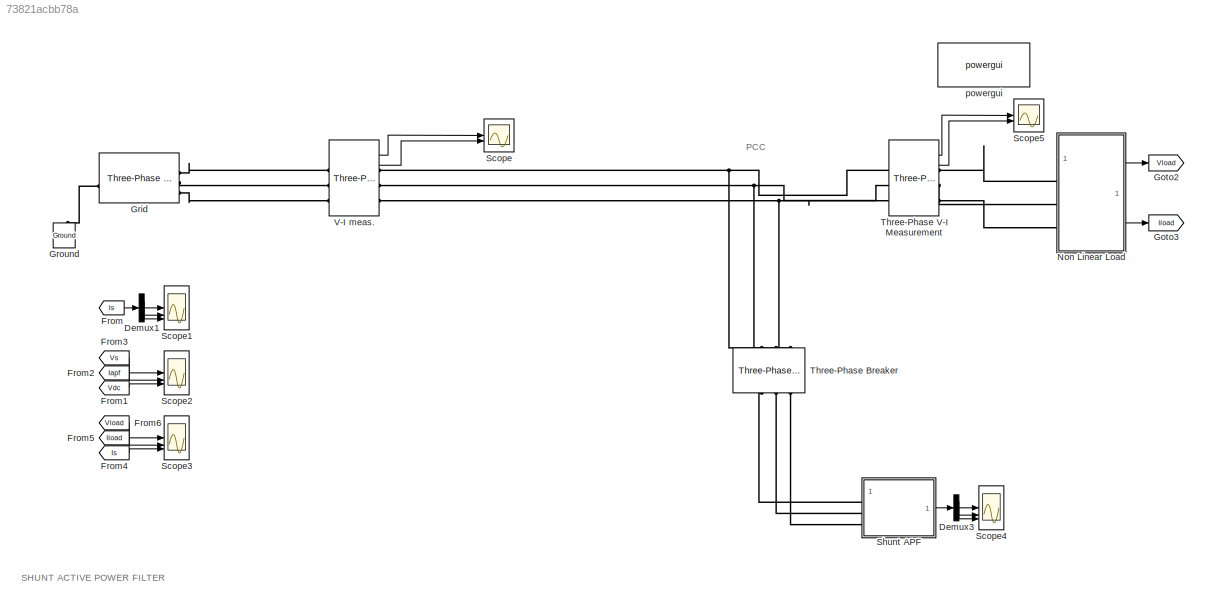
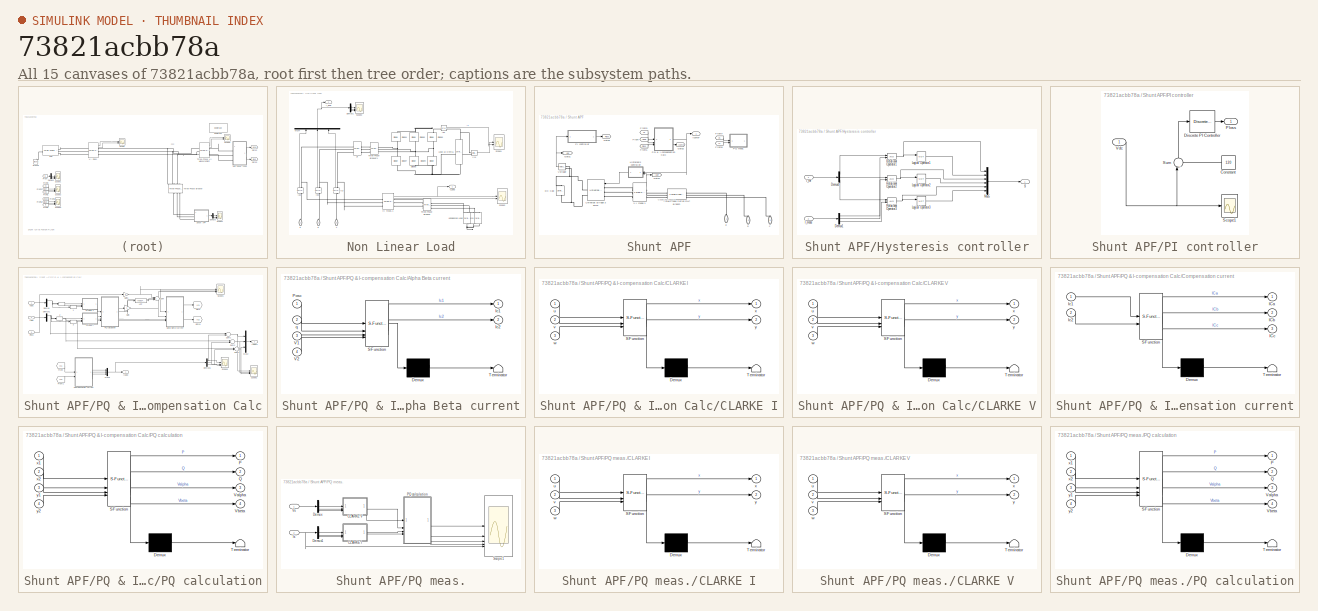
[diagram: thumbnail index - all 15 canvases of the model, root first then tree order]
MODEL mdl_73821acbb78a
KIND model
CONFIG AbsTol = auto
CONFIG EnableMultiTasking = on
CONFIG FixedStep = auto
CONFIG MaxStep = auto
CONFIG MinStep = auto
CONFIG RelTol = 1e-3
CONFIG SampleTimeConstraint = Unconstrained
CONFIG SolverName = ode45
CONFIG StartTime = 0.0
CONFIG StopTime = 0.2
BLOCK [Demux] Demux1
  Outputs = 3
BLOCK [Demux] Demux3
  Outputs = 3
BLOCK [From] From
  CloseFcn = tagdialog Close
  GotoTag = Is
BLOCK [From] From1
  CloseFcn = tagdialog Close
  GotoTag = Vdc
  TagVisibility = global
BLOCK [From] From2
  CloseFcn = tagdialog Close
  GotoTag = Iapf
  TagVisibility = global
BLOCK [From] From3
  CloseFcn = tagdialog Close
  GotoTag = Vs
BLOCK [From] From4
  CloseFcn = tagdialog Close
  GotoTag = Is
BLOCK [From] From5
  CloseFcn = tagdialog Close
  GotoTag = Iload
  TagVisibility = global
BLOCK [From] From6
  CloseFcn = tagdialog Close
  GotoTag = Vload
  TagVisibility = global
BLOCK [Goto] Goto2
  GotoTag = Vload
  TagVisibility = global
BLOCK [Goto] Goto3
  GotoTag = Iload
  TagVisibility = global
BLOCK [Reference] Grid  REF=spsThreePhaseProgrammableVoltageSourceLib/Three-Phase
Programmable
Voltage Source
  LibrarySourceBlock = sps_lib/Sources/Three-Phase\nProgrammable\nVoltage Source
  SourceBlock = spsThreePhaseProgrammableVoltageSourceLib/Three-Phase\nProgrammable\nVoltage Source
  SourceType = Three-Phase Programmable Voltage Source
BLOCK [Reference] Ground  REF=spsGroundLib/Ground
  LibrarySourceBlock = sps_lib/Utilities/Ground
  NameLocation = right
  SourceBlock = spsGroundLib/Ground
  SourceType = Ground
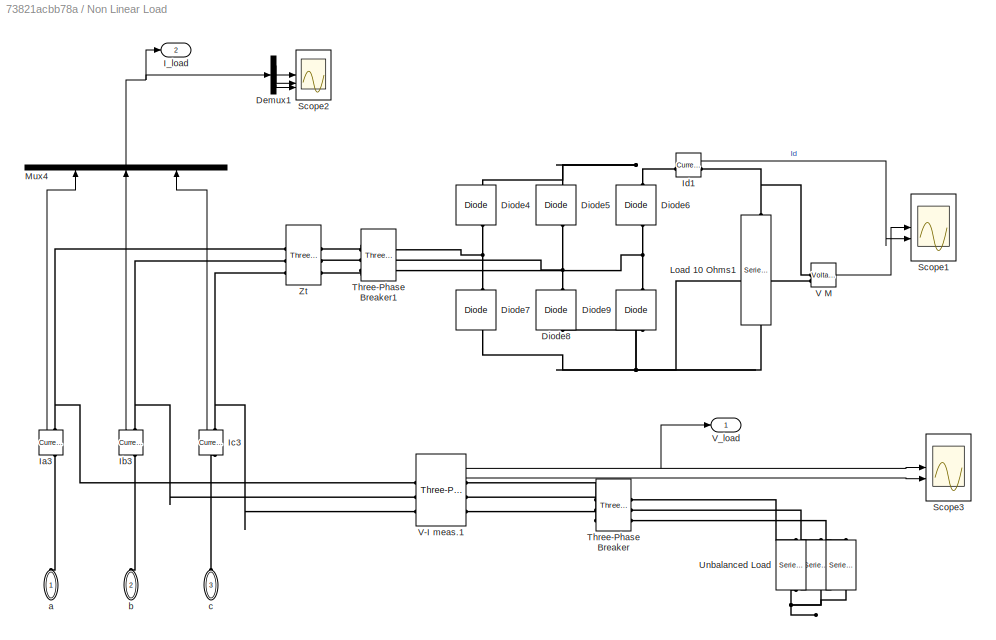
BLOCK [SubSystem] Non Linear Load
BLOCK [Reference] Non Linear Load/   REF=spsSeriesRLCBranchLib/Series RLC Branch
  AttributesFormatString = \n
  NameLocation = left
  SourceBlock = spsSeriesRLCBranchLib/Series RLC Branch
  SourceType = Series RLC Branch
BLOCK [Reference] Non Linear Load/     REF=spsSeriesRLCBranchLib/Series RLC Branch
  AttributesFormatString = \n
  NameLocation = left
  SourceBlock = spsSeriesRLCBranchLib/Series RLC Branch
  SourceType = Series RLC Branch
BLOCK [Demux] Non Linear Load/Demux1
  Outputs = 3
BLOCK [Reference] Non Linear Load/Diode4  REF=spsDiodeLib/Diode
  AttributesFormatString = \n
  LibrarySourceBlock = sps_lib/Power Electronics/Diode
  NameLocation = right
  SourceBlock = spsDiodeLib/Diode
  SourceType = Diode
BLOCK [Reference] Non Linear Load/Diode5  REF=spsDiodeLib/Diode
  AttributesFormatString = \n
  LibrarySourceBlock = sps_lib/Power Electronics/Diode
  NameLocation = right
  SourceBlock = spsDiodeLib/Diode
  SourceType = Diode
BLOCK [Reference] Non Linear Load/Diode6  REF=spsDiodeLib/Diode
  AttributesFormatString = \n
  LibrarySourceBlock = sps_lib/Power Electronics/Diode
  NameLocation = right
  SourceBlock = spsDiodeLib/Diode
  SourceType = Diode
BLOCK [Reference] Non Linear Load/Diode7  REF=spsDiodeLib/Diode
  AttributesFormatString = \n
  LibrarySourceBlock = sps_lib/Power Electronics/Diode
  NameLocation = right
  SourceBlock = spsDiodeLib/Diode
  SourceType = Diode
BLOCK [Reference] Non Linear Load/Diode8  REF=spsDiodeLib/Diode
  AttributesFormatString = \n
  LibrarySourceBlock = sps_lib/Power Electronics/Diode
  NameLocation = right
  SourceBlock = spsDiodeLib/Diode
  SourceType = Diode
BLOCK [Reference] Non Linear Load/Diode9  REF=spsDiodeLib/Diode
  AttributesFormatString = \n
  LibrarySourceBlock = sps_lib/Power Electronics/Diode
  NameLocation = right
  SourceBlock = spsDiodeLib/Diode
  SourceType = Diode
BLOCK [Outport] Non Linear Load/I_load
  Port = 2
BLOCK [Reference] Non Linear Load/Ia3  REF=spsCurrentMeasurementLib/Current Measurement
  NameLocation = right
  SourceBlock = spsCurrentMeasurementLib/Current Measurement
  SourceType = Current Measurement
BLOCK [Reference] Non Linear Load/Ib3  REF=spsCurrentMeasurementLib/Current Measurement
  NameLocation = right
  SourceBlock = spsCurrentMeasurementLib/Current Measurement
  SourceType = Current Measurement
BLOCK [Reference] Non Linear Load/Ic3  REF=spsCurrentMeasurementLib/Current Measurement
  NameLocation = right
  SourceBlock = spsCurrentMeasurementLib/Current Measurement
  SourceType = Current Measurement
BLOCK [Reference] Non Linear Load/Id1  REF=spsCurrentMeasurementLib/Current Measurement
  AttributesFormatString = \n
  SourceBlock = spsCurrentMeasurementLib/Current Measurement
  SourceType = Current Measurement
  Tag = PoWeRsYsTeMmEaSuReMeNt
BLOCK [Reference] Non Linear Load/Load 10 Ohms1  REF=spsSeriesRLCBranchLib/Series RLC Branch
  AttributesFormatString = \n
  NameLocation = left
  SourceBlock = spsSeriesRLCBranchLib/Series RLC Branch
  SourceType = Series RLC Branch
BLOCK [Mux] Non Linear Load/Mux4
  DisplayOption = bar
  Inputs = 3
  NameLocation = right
BLOCK [Scope] Non Linear Load/Scope1
  Floating = off
  NumInputPorts = 2
  ScopeSpecificationString = C++SS(StrPVP('Location','[6, 48, 1030, 727]'),StrPVP('Open','off'),StrPVP('ZoomMode','xonly'),MxPVP('AxesTitles',54,'struct(''axes1'',''%<SignalLabel>'',''axes2'',''%<SignalLabel>'')'),StrPVP('TimeRange','0.1'),StrPVP('YMin','-2.5~-0.05'),StrPVP('YMax','55~0.95'),StrPVP('DataFormat','Structure'),StrPVP('LimitDataPoints','off'),StrPVP('BlockParamSampleTime','0'),StrPVP('Decimation','1'),StrPVP('Blo...<+27ch>
BLOCK [Scope] Non Linear Load/Scope2
  Floating = off
  NumInputPorts = 3
  ScopeSpecificationString = C++SS(StrPVP('Location','[1, 49, 1281, 759]'),StrPVP('Open','off'),StrPVP('ZoomMode','xonly'),MxPVP('AxesTitles',54,'struct(''axes1'',''%<SignalLabel>'',''axes2'',''%<SignalLabel>'',''axes3'',''%<SignalLabel>'')'),StrPVP('TimeRange','0.1'),StrPVP('YMin','0~-56.5~-5'),StrPVP('YMax','60~-48~60'),StrPVP('SaveToWorkspace','on'),StrPVP('SaveName','psb3phPWM1_str8'),StrPVP('DataFormat','StructureWithTim...<+167ch>
BLOCK [Scope] Non Linear Load/Scope3
  Floating = off
  NumInputPorts = 2
  ScopeSpecificationString = C++SS(StrPVP('Location','[6, 48, 1030, 727]'),StrPVP('Open','off'),StrPVP('ZoomMode','xonly'),MxPVP('AxesTitles',54,'struct(''axes1'',''%<SignalLabel>'',''axes2'',''%<SignalLabel>'')'),StrPVP('TimeRange','0.1'),StrPVP('YMin','-22.5~-2.25e-005'),StrPVP('YMax','35~3.5e-005'),StrPVP('SaveName','ScopeData1'),StrPVP('DataFormat','Structure'),StrPVP('LimitDataPoints','off'),StrPVP('BlockParamSampleTime'...<+69ch>
BLOCK [Reference] Non Linear Load/Three-Phase Breaker  REF=spsThreePhaseBreakerLib/Three-Phase Breaker
  LibrarySourceBlock = sps_lib/Power Grid Elements/Three-Phase Breaker
  SourceBlock = spsThreePhaseBreakerLib/Three-Phase Breaker
  SourceType = Three-Phase Breaker
BLOCK [Reference] Non Linear Load/Three-Phase Breaker1  REF=spsThreePhaseBreakerLib/Three-Phase Breaker
  LibrarySourceBlock = sps_lib/Power Grid Elements/Three-Phase Breaker
  SourceBlock = spsThreePhaseBreakerLib/Three-Phase Breaker
  SourceType = Three-Phase Breaker
BLOCK [Reference] Non Linear Load/Unbalanced Load  REF=spsSeriesRLCBranchLib/Series RLC Branch
  AttributesFormatString = \n
  NameLocation = left
  SourceBlock = spsSeriesRLCBranchLib/Series RLC Branch
  SourceType = Series RLC Branch
BLOCK [Reference] Non Linear Load/V M  REF=spsVoltageMeasurementLib/Voltage Measurement
  SourceBlock = spsVoltageMeasurementLib/Voltage Measurement
  SourceType = Voltage Measurement
BLOCK [Reference] Non Linear Load/V-I meas.1  REF=spsThreePhaseVIMeasurementLib/Three-Phase
V-I Measurement
  SourceBlock = spsThreePhaseVIMeasurementLib/Three-Phase\nV-I Measurement
  SourceType = Three-Phase VI Measurement
BLOCK [Outport] Non Linear Load/V_load
BLOCK [Reference] Non Linear Load/Zt  REF=spsThreePhaseSeriesRLCBranchLib/Three-Phase
Series RLC Branch
  AttributesFormatString = \n
  LibrarySourceBlock = sps_lib/Passives/Three-Phase\nSeries RLC Branch
  SourceBlock = spsThreePhaseSeriesRLCBranchLib/Three-Phase\nSeries RLC Branch
  SourceType = Three-Phase Series RLC Branch
BLOCK [PMIOPort] Non Linear Load/a
  NameLocation = left
  Side = Left
BLOCK [PMIOPort] Non Linear Load/b
  NameLocation = left
  Port = 2
  Side = Left
BLOCK [PMIOPort] Non Linear Load/c
  NameLocation = left
  Port = 3
  Side = Left
BLOCK [Scope] Scope
  Floating = off
  NumInputPorts = 2
  ScopeSpecificationString = Simulink.scopes.TimeScopeBlockCfg('CurrentConfiguration', extmgr.ConfigurationSet(extmgr.Configuration('Core','General UI',true),extmgr.Configuration('Core','Source UI',true),extmgr.Configuration('Sources','WiredSimulink',true,'DataLoggingVariableName','ScopeData2'),extmgr.Configuration('Visuals','Time Domain',true,'SerializedDisplays',{struct('MinYLimReal','-446.01126','MaxYLimReal','446.01126','...<+2389ch>
BLOCK [Scope] Scope1
  Floating = off
  NumInputPorts = 3
  ScopeSpecificationString = C++SS(StrPVP('Location','[1, 49, 1281, 759]'),StrPVP('Open','off'),StrPVP('ZoomMode','xonly'),MxPVP('AxesTitles',54,'struct(''axes1'',''%<SignalLabel>'',''axes2'',''%<SignalLabel>'',''axes3'',''%<SignalLabel>'')'),StrPVP('TimeRange','0.1'),StrPVP('YMin','-70~-80~-70'),StrPVP('YMax','70~70~70'),StrPVP('SaveToWorkspace','on'),StrPVP('SaveName','Isource'),StrPVP('DataFormat','StructureWithTime'),StrP...<+159ch>
BLOCK [Scope] Scope2
  Floating = off
  NumInputPorts = 3
  ScopeSpecificationString = C++SS(StrPVP('Location','[6, 49, 1286, 727]'),StrPVP('Open','off'),StrPVP('ZoomMode','xonly'),MxPVP('AxesTitles',54,'struct(''axes1'',''%<SignalLabel>'',''axes2'',''%<SignalLabel>'',''axes3'',''%<SignalLabel>'')'),StrPVP('TimeRange','0.1'),StrPVP('YMin','-30~-0.2~101.25'),StrPVP('YMax','35~0.3~104.5'),StrPVP('SaveToWorkspace','on'),StrPVP('SaveName','Vs_Iapf_Vdc'),StrPVP('DataFormat','StructureWit...<+171ch>
BLOCK [Scope] Scope3
  Floating = off
  NumInputPorts = 3
  ScopeSpecificationString = C++SS(StrPVP('Location','[1, 49, 1367, 727]'),StrPVP('Open','off'),StrPVP('ZoomMode','xonly'),MxPVP('AxesTitles',54,'struct(''axes1'',''%<SignalLabel>'',''axes2'',''%<SignalLabel>'',''axes3'',''%<SignalLabel>'')'),StrPVP('TimeRange','0.1'),StrPVP('YMin','-35~-1~-1.75'),StrPVP('YMax','35~1~1.75'),StrPVP('SaveToWorkspace','on'),StrPVP('SaveName','Vs_Iapf_Vdc1'),StrPVP('DataFormat','StructureWithTime...<+166ch>
BLOCK [Scope] Scope4
  Floating = off
  NumInputPorts = 3
  ScopeSpecificationString = C++SS(StrPVP('Location','[255, 57, 1275, 736]'),StrPVP('Open','off'),StrPVP('ZoomMode','xonly'),MxPVP('AxesTitles',54,'struct(''axes1'',''%<SignalLabel>'',''axes2'',''%<SignalLabel>'',''axes3'',''%<SignalLabel>'')'),StrPVP('TimeRange','0.1'),StrPVP('YMin','-350~-500~-400'),StrPVP('YMax','400~500~400'),StrPVP('SaveToWorkspace','on'),StrPVP('SaveName','Icomp'),StrPVP('DataFormat','StructureWithTime'...<+165ch>
BLOCK [Scope] Scope5
  Floating = off
  NumInputPorts = 2
  ScopeSpecificationString = Simulink.scopes.TimeScopeBlockCfg('CurrentConfiguration', extmgr.ConfigurationSet(extmgr.Configuration('Core','General UI',true),extmgr.Configuration('Core','Source UI',true),extmgr.Configuration('Sources','WiredSimulink',true,'DataLoggingVariableName','ScopeData3'),extmgr.Configuration('Visuals','Time Domain',true,'SerializedDisplays',{struct('MinYLimReal','-387.83588','MaxYLimReal','387.83588','...<+2425ch>
BLOCK [SubSystem] Shunt APF
BLOCK [Reference] Shunt APF/DC Cap  REF=spsSeriesRLCBranchLib/Series RLC Branch
  NameLocation = left
  SourceBlock = spsSeriesRLCBranchLib/Series RLC Branch
  SourceType = Series RLC Branch
BLOCK [From] Shunt APF/From
  CloseFcn = tagdialog Close
  GotoTag = Iload
  TagVisibility = global
BLOCK [From] Shunt APF/From1
  CloseFcn = tagdialog Close
  GotoTag = Ploss
  TagVisibility = global
BLOCK [From] Shunt APF/From3
  CloseFcn = tagdialog Close
  GotoTag = Vs
BLOCK [From] Shunt APF/From7
  CloseFcn = tagdialog Close
  GotoTag = Vs
BLOCK [From] Shunt APF/From8
  CloseFcn = tagdialog Close
  GotoTag = Is
BLOCK [Goto] Shunt APF/Goto1
  GotoTag = Vdc
  TagVisibility = global
BLOCK [Goto] Shunt APF/Goto2
  GotoTag = Icomp
BLOCK [Goto] Shunt APF/Goto3
  GotoTag = Ploss
  TagVisibility = global
BLOCK [Goto] Shunt APF/Goto4
  GotoTag = Iapf
  TagVisibility = global
BLOCK [SubSystem] Shunt APF/Hysteresis controller
  NameLocation = top
BLOCK [Demux] Shunt APF/Hysteresis controller/Demux1
  NameLocation = top
  Outputs = 3
BLOCK [Demux] Shunt APF/Hysteresis controller/Demux9
  NameLocation = top
  Outputs = 3
BLOCK [Inport] Shunt APF/Hysteresis controller/I_meas
  Port = 2
BLOCK [Inport] Shunt APF/Hysteresis controller/I_ref
BLOCK [Logic] Shunt APF/Hysteresis controller/Logical Operator1
  AllPortsSameDT = off
  Operator = NOT
  OutDataTypeStr = boolean
BLOCK [Logic] Shunt APF/Hysteresis controller/Logical Operator2
  AllPortsSameDT = off
  Operator = NOT
  OutDataTypeStr = boolean
BLOCK [Logic] Shunt APF/Hysteresis controller/Logical Operator3
  AllPortsSameDT = off
  Operator = NOT
  OutDataTypeStr = boolean
BLOCK [Mux] Shunt APF/Hysteresis controller/Mux5
  DisplayOption = bar
  Inputs = 6
BLOCK [RelationalOperator] Shunt APF/Hysteresis controller/Relational Operator1
  InputSameDT = off
  OutDataTypeStr = boolean
BLOCK [RelationalOperator] Shunt APF/Hysteresis controller/Relational Operator2
  InputSameDT = off
  OutDataTypeStr = boolean
BLOCK [RelationalOperator] Shunt APF/Hysteresis controller/Relational Operator3
  InputSameDT = off
  OutDataTypeStr = boolean
BLOCK [Outport] Shunt APF/Hysteresis controller/g
BLOCK [Outport] Shunt APF/Icomp*
BLOCK [SubSystem] Shunt APF/PI controller
BLOCK [Constant] Shunt APF/PI controller/Constant
  NameLocation = top
  Value = 120
BLOCK [Reference] Shunt APF/PI controller/Discrete PI Controller  REF=powerlib_extras/Discrete 
Control Blocks/Discrete
PI Controller
  SourceBlock = powerlib_extras/Discrete \nControl Blocks/Discrete\nPI Controller
  SourceType = Discrete PI Controller
BLOCK [Outport] Shunt APF/PI controller/Ploss
BLOCK [Scope] Shunt APF/PI controller/Scope1
  Floating = off
  NumInputPorts = 1
  ScopeSpecificationString = C++SS(StrPVP('Location','[6, 48, 1026, 727]'),StrPVP('Open','off'),StrPVP('ZoomMode','yonly'),MxPVP('AxesTitles',54,'struct(''axes1'',''%<SignalLabel>'')'),StrPVP('TimeRange','0.1'),StrPVP('YMin','-1000'),StrPVP('YMax','14000'),StrPVP('SaveToWorkspace','on'),StrPVP('SaveName','psb3phPWM1_str1'),StrPVP('DataFormat','StructureWithTime'),StrPVP('LimitDataPoints','off'),StrPVP('MaxDataPoints','500000'...<+100ch>
BLOCK [Sum] Shunt APF/PI controller/Sum
  Inputs = |-+
  NameLocation = right
BLOCK [Inport] Shunt APF/PI controller/Vdc
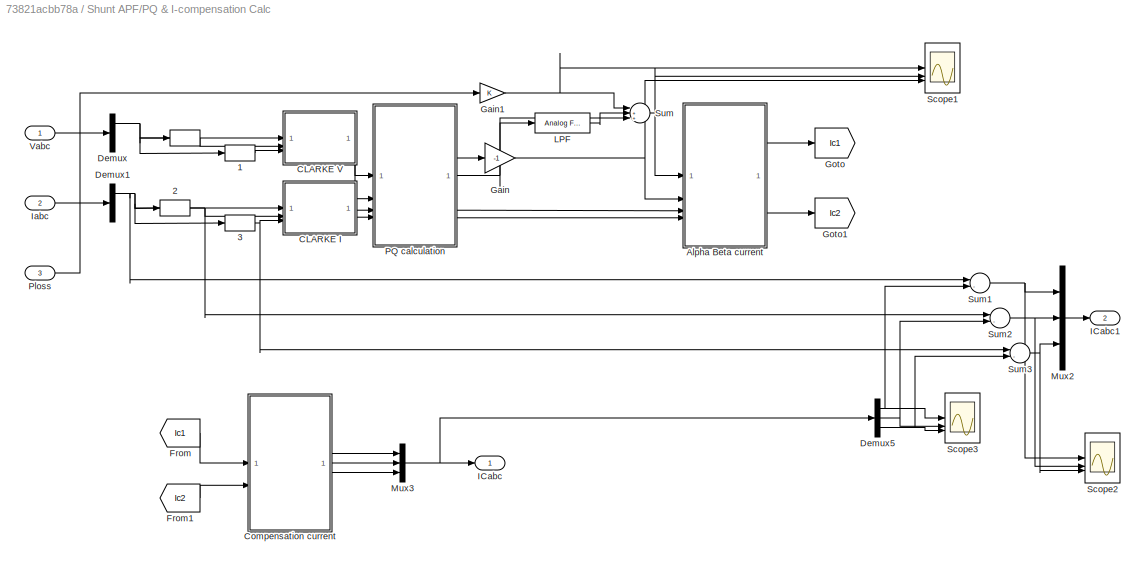
BLOCK [SubSystem] Shunt APF/PQ & I-compensation Calc
BLOCK [TransportDelay] Shunt APF/PQ & I-compensation Calc/ 
  DelayTime = 0.006666666
BLOCK [TransportDelay] Shunt APF/PQ & I-compensation Calc/ 1
  DelayTime = 0.013333333
BLOCK [TransportDelay] Shunt APF/PQ & I-compensation Calc/ 2
  DelayTime = 0.006666666
BLOCK [TransportDelay] Shunt APF/PQ & I-compensation Calc/ 3
  DelayTime = 0.013333333
BLOCK [SubSystem] Shunt APF/PQ & I-compensation Calc/Alpha Beta current
  ErrorFcn = Stateflow.Translate.translate
  PermitHierarchicalResolution = ExplicitOnly
  SFBlockType = MATLAB Function
  TreatAsAtomicUnit = on
BLOCK [Demux] Shunt APF/PQ & I-compensation Calc/Alpha Beta current/ Demux 
  Outputs = 1
BLOCK [S-Function] Shunt APF/PQ & I-compensation Calc/Alpha Beta current/ SFunction 
  EnableBusSupport = on
  FunctionName = sf_sfun
  PortCounts = [4 3]
  SFcnIsStateOwnerBlock = off
  SFunctionDeploymentMode = off
  Tag = Stateflow S-Function 5
BLOCK [Terminator] Shunt APF/PQ & I-compensation Calc/Alpha Beta current/ Terminator 
BLOCK [Outport] Shunt APF/PQ & I-compensation Calc/Alpha Beta current/Ic1
BLOCK [Outport] Shunt APF/PQ & I-compensation Calc/Alpha Beta current/Ic2
  Port = 2
BLOCK [Inport] Shunt APF/PQ & I-compensation Calc/Alpha Beta current/Posc
BLOCK [Inport] Shunt APF/PQ & I-compensation Calc/Alpha Beta current/V1
  Port = 3
BLOCK [Inport] Shunt APF/PQ & I-compensation Calc/Alpha Beta current/V2
  Port = 4
BLOCK [Inport] Shunt APF/PQ & I-compensation Calc/Alpha Beta current/q
  Port = 2
BLOCK [SubSystem] Shunt APF/PQ & I-compensation Calc/CLARKE I
  ErrorFcn = Stateflow.Translate.translate
  PermitHierarchicalResolution = ExplicitOnly
  SFBlockType = MATLAB Function
  TreatAsAtomicUnit = on
BLOCK [Demux] Shunt APF/PQ & I-compensation Calc/CLARKE I/ Demux 
  Outputs = 1
BLOCK [S-Function] Shunt APF/PQ & I-compensation Calc/CLARKE I/ SFunction 
  EnableBusSupport = on
  FunctionName = sf_sfun
  PortCounts = [3 3]
  SFcnIsStateOwnerBlock = off
  SFunctionDeploymentMode = off
  Tag = Stateflow S-Function 1
BLOCK [Terminator] Shunt APF/PQ & I-compensation Calc/CLARKE I/ Terminator 
BLOCK [Inport] Shunt APF/PQ & I-compensation Calc/CLARKE I/u
BLOCK [Inport] Shunt APF/PQ & I-compensation Calc/CLARKE I/v
  Port = 2
BLOCK [Inport] Shunt APF/PQ & I-compensation Calc/CLARKE I/w
  Port = 3
BLOCK [Outport] Shunt APF/PQ & I-compensation Calc/CLARKE I/x
BLOCK [Outport] Shunt APF/PQ & I-compensation Calc/CLARKE I/y
  Port = 2
BLOCK [SubSystem] Shunt APF/PQ & I-compensation Calc/CLARKE V
  ErrorFcn = Stateflow.Translate.translate
  PermitHierarchicalResolution = ExplicitOnly
  SFBlockType = MATLAB Function
  TreatAsAtomicUnit = on
BLOCK [Demux] Shunt APF/PQ & I-compensation Calc/CLARKE V/ Demux 
  Outputs = 1
BLOCK [S-Function] Shunt APF/PQ & I-compensation Calc/CLARKE V/ SFunction 
  EnableBusSupport = on
  FunctionName = sf_sfun
  PortCounts = [3 3]
  SFcnIsStateOwnerBlock = off
  SFunctionDeploymentMode = off
  Tag = Stateflow S-Function 2
BLOCK [Terminator] Shunt APF/PQ & I-compensation Calc/CLARKE V/ Terminator 
BLOCK [Inport] Shunt APF/PQ & I-compensation Calc/CLARKE V/u
BLOCK [Inport] Shunt APF/PQ & I-compensation Calc/CLARKE V/v
  Port = 2
BLOCK [Inport] Shunt APF/PQ & I-compensation Calc/CLARKE V/w
  Port = 3
BLOCK [Outport] Shunt APF/PQ & I-compensation Calc/CLARKE V/x
BLOCK [Outport] Shunt APF/PQ & I-compensation Calc/CLARKE V/y
  Port = 2
BLOCK [SubSystem] Shunt APF/PQ & I-compensation Calc/Compensation current
  ErrorFcn = Stateflow.Translate.translate
  PermitHierarchicalResolution = ExplicitOnly
  SFBlockType = MATLAB Function
  TreatAsAtomicUnit = on
BLOCK [Demux] Shunt APF/PQ & I-compensation Calc/Compensation current/ Demux 
  Outputs = 1
BLOCK [S-Function] Shunt APF/PQ & I-compensation Calc/Compensation current/ SFunction 
  EnableBusSupport = on
  FunctionName = sf_sfun
  PortCounts = [2 4]
  SFcnIsStateOwnerBlock = off
  SFunctionDeploymentMode = off
  Tag = Stateflow S-Function 4
BLOCK [Terminator] Shunt APF/PQ & I-compensation Calc/Compensation current/ Terminator 
BLOCK [Outport] Shunt APF/PQ & I-compensation Calc/Compensation current/ICa
BLOCK [Outport] Shunt APF/PQ & I-compensation Calc/Compensation current/ICb
  Port = 2
BLOCK [Outport] Shunt APF/PQ & I-compensation Calc/Compensation current/ICc
  Port = 3
BLOCK [Inport] Shunt APF/PQ & I-compensation Calc/Compensation current/Ic1
BLOCK [Inport] Shunt APF/PQ & I-compensation Calc/Compensation current/Ic2
  Port = 2
BLOCK [Demux] Shunt APF/PQ & I-compensation Calc/Demux
  Outputs = 3
BLOCK [Demux] Shunt APF/PQ & I-compensation Calc/Demux1
  Outputs = 3
BLOCK [Demux] Shunt APF/PQ & I-compensation Calc/Demux5
  Outputs = 3
BLOCK [From] Shunt APF/PQ & I-compensation Calc/From
  GotoTag = Ic1
BLOCK [From] Shunt APF/PQ & I-compensation Calc/From1
  GotoTag = Ic2
BLOCK [Gain] Shunt APF/PQ & I-compensation Calc/Gain
  Gain = -1
BLOCK [Gain] Shunt APF/PQ & I-compensation Calc/Gain1
BLOCK [Goto] Shunt APF/PQ & I-compensation Calc/Goto
  GotoTag = Ic1
BLOCK [Goto] Shunt APF/PQ & I-compensation Calc/Goto1
  GotoTag = Ic2
BLOCK [Outport] Shunt APF/PQ & I-compensation Calc/ICabc
BLOCK [Outport] Shunt APF/PQ & I-compensation Calc/ICabc1
  Port = 2
BLOCK [Inport] Shunt APF/PQ & I-compensation Calc/Iabc
  Port = 2
BLOCK [Reference] Shunt APF/PQ & I-compensation Calc/LPF  REF=dspfdesign/Analog
Filter Design
  SourceBlock = dspfdesign/Analog\nFilter Design
  SourceType = Analog Filter Design
BLOCK [Mux] Shunt APF/PQ & I-compensation Calc/Mux2
  DisplayOption = bar
  Inputs = 3
BLOCK [Mux] Shunt APF/PQ & I-compensation Calc/Mux3
  DisplayOption = bar
  Inputs = 3
BLOCK [SubSystem] Shunt APF/PQ & I-compensation Calc/PQ calculation
  ErrorFcn = Stateflow.Translate.translate
  PermitHierarchicalResolution = ExplicitOnly
  SFBlockType = MATLAB Function
  TreatAsAtomicUnit = on
BLOCK [Demux] Shunt APF/PQ & I-compensation Calc/PQ calculation/ Demux 
  Outputs = 1
BLOCK [S-Function] Shunt APF/PQ & I-compensation Calc/PQ calculation/ SFunction 
  EnableBusSupport = on
  FunctionName = sf_sfun
  PortCounts = [4 5]
  SFcnIsStateOwnerBlock = off
  SFunctionDeploymentMode = off
  Tag = Stateflow S-Function 3
BLOCK [Terminator] Shunt APF/PQ & I-compensation Calc/PQ calculation/ Terminator 
BLOCK [Outport] Shunt APF/PQ & I-compensation Calc/PQ calculation/P
BLOCK [Outport] Shunt APF/PQ & I-compensation Calc/PQ calculation/Q
  Port = 2
BLOCK [Outport] Shunt APF/PQ & I-compensation Calc/PQ calculation/Valpha
  Port = 3
BLOCK [Outport] Shunt APF/PQ & I-compensation Calc/PQ calculation/Vbeta
  Port = 4
BLOCK [Inport] Shunt APF/PQ & I-compensation Calc/PQ calculation/x1
BLOCK [Inport] Shunt APF/PQ & I-compensation Calc/PQ calculation/x2
  Port = 2
BLOCK [Inport] Shunt APF/PQ & I-compensation Calc/PQ calculation/y1
  Port = 3
BLOCK [Inport] Shunt APF/PQ & I-compensation Calc/PQ calculation/y2
  Port = 4
BLOCK [Inport] Shunt APF/PQ & I-compensation Calc/Ploss
  Port = 3
BLOCK [Scope] Shunt APF/PQ & I-compensation Calc/Scope1
  Floating = off
  NumInputPorts = 3
  ScopeSpecificationString = C++SS(StrPVP('Location','[255, 57, 1275, 736]'),StrPVP('Open','off'),StrPVP('ZoomMode','xonly'),MxPVP('AxesTitles',54,'struct(''axes1'',''%<SignalLabel>'',''axes2'',''%<SignalLabel>'',''axes3'',''%<SignalLabel>'')'),StrPVP('TimeRange','0.1'),StrPVP('YMin','3.575~4.5~-22'),StrPVP('YMax','3.875~9.5~-17'),StrPVP('SaveToWorkspace','on'),StrPVP('SaveName','psb3phPWM1_str9'),StrPVP('DataFormat','Structu...<+176ch>
BLOCK [Scope] Shunt APF/PQ & I-compensation Calc/Scope2
  Floating = off
  NumInputPorts = 3
  ScopeSpecificationString = C++SS(StrPVP('Location','[255, 57, 1275, 736]'),StrPVP('Open','off'),StrPVP('ZoomMode','xonly'),MxPVP('AxesTitles',54,'struct(''axes1'',''%<SignalLabel>'',''axes2'',''%<SignalLabel>'',''axes3'',''%<SignalLabel>'')'),StrPVP('TimeRange','0.1'),StrPVP('YMin','0.9825~-0.7725~-0.265'),StrPVP('YMax','1.0025~-0.735~-0.21'),StrPVP('SaveToWorkspace','on'),StrPVP('SaveName','psb3phPWM1_str2'),StrPVP('DataFo...<+190ch>
BLOCK [Scope] Shunt APF/PQ & I-compensation Calc/Scope3
  Floating = off
  NumInputPorts = 3
  ScopeSpecificationString = C++SS(StrPVP('Location','[255, 57, 1275, 736]'),StrPVP('Open','off'),StrPVP('ZoomMode','xonly'),MxPVP('AxesTitles',54,'struct(''axes1'',''%<SignalLabel>'',''axes2'',''%<SignalLabel>'',''axes3'',''%<SignalLabel>'')'),StrPVP('TimeRange','0.1'),StrPVP('YMin','-0.0625~-0.01~0.0325'),StrPVP('YMax','-0.04~0.01~0.07'),StrPVP('SaveToWorkspace','on'),StrPVP('SaveName','psb3phPWM1_str7'),StrPVP('DataFormat'...<+185ch>
BLOCK [Sum] Shunt APF/PQ & I-compensation Calc/Sum
  Inputs = |++-
BLOCK [Sum] Shunt APF/PQ & I-compensation Calc/Sum1
  Inputs = |-+
BLOCK [Sum] Shunt APF/PQ & I-compensation Calc/Sum2
  Inputs = |-+
BLOCK [Sum] Shunt APF/PQ & I-compensation Calc/Sum3
  Inputs = |-+
BLOCK [Inport] Shunt APF/PQ & I-compensation Calc/Vabc
BLOCK [SubSystem] Shunt APF/PQ meas.
BLOCK [SubSystem] Shunt APF/PQ meas./CLARKE I
  ErrorFcn = Stateflow.Translate.translate
  PermitHierarchicalResolution = ExplicitOnly
  SFBlockType = MATLAB Function
  TreatAsAtomicUnit = on
BLOCK [Demux] Shunt APF/PQ meas./CLARKE I/ Demux 
  Outputs = 1
BLOCK [S-Function] Shunt APF/PQ meas./CLARKE I/ SFunction 
  EnableBusSupport = on
  FunctionName = sf_sfun
  PortCounts = [3 3]
  SFcnIsStateOwnerBlock = off
  SFunctionDeploymentMode = off
  Tag = Stateflow S-Function 6
BLOCK [Terminator] Shunt APF/PQ meas./CLARKE I/ Terminator 
BLOCK [Inport] Shunt APF/PQ meas./CLARKE I/u
BLOCK [Inport] Shunt APF/PQ meas./CLARKE I/v
  Port = 2
BLOCK [Inport] Shunt APF/PQ meas./CLARKE I/w
  Port = 3
BLOCK [Outport] Shunt APF/PQ meas./CLARKE I/x
BLOCK [Outport] Shunt APF/PQ meas./CLARKE I/y
  Port = 2
BLOCK [SubSystem] Shunt APF/PQ meas./CLARKE V
  ErrorFcn = Stateflow.Translate.translate
  PermitHierarchicalResolution = ExplicitOnly
  SFBlockType = MATLAB Function
  TreatAsAtomicUnit = on
BLOCK [Demux] Shunt APF/PQ meas./CLARKE V/ Demux 
  Outputs = 1
BLOCK [S-Function] Shunt APF/PQ meas./CLARKE V/ SFunction 
  EnableBusSupport = on
  FunctionName = sf_sfun
  PortCounts = [3 3]
  SFcnIsStateOwnerBlock = off
  SFunctionDeploymentMode = off
  Tag = Stateflow S-Function 7
BLOCK [Terminator] Shunt APF/PQ meas./CLARKE V/ Terminator 
BLOCK [Inport] Shunt APF/PQ meas./CLARKE V/u
BLOCK [Inport] Shunt APF/PQ meas./CLARKE V/v
  Port = 2
BLOCK [Inport] Shunt APF/PQ meas./CLARKE V/w
  Port = 3
BLOCK [Outport] Shunt APF/PQ meas./CLARKE V/x
BLOCK [Outport] Shunt APF/PQ meas./CLARKE V/y
  Port = 2
BLOCK [Demux] Shunt APF/PQ meas./Demux
  Outputs = 3
BLOCK [Demux] Shunt APF/PQ meas./Demux1
  Outputs = 3
BLOCK [Inport] Shunt APF/PQ meas./Is
  Port = 2
BLOCK [SubSystem] Shunt APF/PQ meas./PQ calculation
  ErrorFcn = Stateflow.Translate.translate
  PermitHierarchicalResolution = ExplicitOnly
  SFBlockType = MATLAB Function
  TreatAsAtomicUnit = on
BLOCK [Demux] Shunt APF/PQ meas./PQ calculation/ Demux 
  Outputs = 1
BLOCK [S-Function] Shunt APF/PQ meas./PQ calculation/ SFunction 
  EnableBusSupport = on
  FunctionName = sf_sfun
  PortCounts = [4 5]
  SFcnIsStateOwnerBlock = off
  SFunctionDeploymentMode = off
  Tag = Stateflow S-Function 8
BLOCK [Terminator] Shunt APF/PQ meas./PQ calculation/ Terminator 
BLOCK [Outport] Shunt APF/PQ meas./PQ calculation/P
BLOCK [Outport] Shunt APF/PQ meas./PQ calculation/Q
  Port = 2
BLOCK [Outport] Shunt APF/PQ meas./PQ calculation/Valpha
  Port = 3
BLOCK [Outport] Shunt APF/PQ meas./PQ calculation/Vbeta
  Port = 4
BLOCK [Inport] Shunt APF/PQ meas./PQ calculation/x1
BLOCK [Inport] Shunt APF/PQ meas./PQ calculation/x2
  Port = 2
BLOCK [Inport] Shunt APF/PQ meas./PQ calculation/y1
  Port = 3
BLOCK [Inport] Shunt APF/PQ meas./PQ calculation/y2
  Port = 4
BLOCK [Scope] Shunt APF/PQ meas./Scope1
  Floating = off
  NumInputPorts = 5
  ScopeSpecificationString = C++SS(StrPVP('Location','[255, 57, 1275, 736]'),StrPVP('Open','off'),StrPVP('ZoomMode','xonly'),MxPVP('AxesTitles',54,'struct(''axes1'',''%<SignalLabel>'',''axes2'',''%<SignalLabel>'',''axes3'',''%<SignalLabel>'',''axes4'',''%<SignalLabel>'',''axes5'',''%<SignalLabel>'')'),StrPVP('TimeRange','0.1'),StrPVP('YMin','49.75~-1~-39.955~-2.7~-1.25'),StrPVP('YMax','51.5~1~-39.91~-1.8~0.75'),StrPVP('SaveTo...<+257ch>
BLOCK [Inport] Shunt APF/PQ meas./Vs
BLOCK [Reference] Shunt APF/Three-Phase Series RLC Branch  REF=spsThreePhaseSeriesRLCBranchLib/Three-Phase
Series RLC Branch
  AttributesFormatString = \n
  LibrarySourceBlock = sps_lib/Passives/Three-Phase\nSeries RLC Branch
  SourceBlock = spsThreePhaseSeriesRLCBranchLib/Three-Phase\nSeries RLC Branch
  SourceType = Three-Phase Series RLC Branch
BLOCK [Reference] Shunt APF/Universal Bridge 3 arms  REF=spsUniversalBridgeLib/Universal Bridge
  AttributesFormatString = \n
  LibrarySourceBlock = sps_lib/Power Electronics/Universal Bridge
  SourceBlock = spsUniversalBridgeLib/Universal Bridge
  SourceType = Universal Bridge
BLOCK [Reference] Shunt APF/V-I meas.1  REF=spsThreePhaseVIMeasurementLib/Three-Phase
V-I Measurement
  SourceBlock = spsThreePhaseVIMeasurementLib/Three-Phase\nV-I Measurement
  SourceType = Three-Phase VI Measurement
BLOCK [Reference] Shunt APF/Voltage  REF=spsVoltageMeasurementLib/Voltage Measurement
  NameLocation = top
  SourceBlock = spsVoltageMeasurementLib/Voltage Measurement
  SourceType = Voltage Measurement
BLOCK [PMIOPort] Shunt APF/a
  NameLocation = left
  Side = Left
BLOCK [PMIOPort] Shunt APF/b
  NameLocation = left
  Port = 2
  Side = Left
BLOCK [PMIOPort] Shunt APF/c
  NameLocation = left
  Port = 3
  Side = Left
BLOCK [Reference] Three-Phase Breaker  REF=spsThreePhaseBreakerLib/Three-Phase Breaker
  LibrarySourceBlock = sps_lib/Power Grid Elements/Three-Phase Breaker
  NameLocation = left
  SourceBlock = spsThreePhaseBreakerLib/Three-Phase Breaker
  SourceType = Three-Phase Breaker
BLOCK [Reference] Three-Phase V-I Measurement  REF=spsThreePhaseVIMeasurementLib/Three-Phase
V-I Measurement
  LibrarySourceBlock = sps_lib/Sensors and Measurements/Three-Phase\nV-I Measurement
  SourceBlock = spsThreePhaseVIMeasurementLib/Three-Phase\nV-I Measurement
  SourceType = Three-Phase VI Measurement
BLOCK [Reference] V-I meas.  REF=spsThreePhaseVIMeasurementLib/Three-Phase
V-I Measurement
  SourceBlock = spsThreePhaseVIMeasurementLib/Three-Phase\nV-I Measurement
  SourceType = Three-Phase VI Measurement
BLOCK [Reference] powergui  REF=spspowerguiLib/powergui
  Priority = 1
  SourceBlock = spspowerguiLib/powergui
  SourceType = PSB option menu block
ANNOTATION (root): PCC
ANNOTATION (root): SHUNT ACTIVE POWER FILTER
ANNOTATION Shunt APF: Coupling Inductor
LINE Demux1:1 -> Scope1:1
LINE Demux1:2 -> Scope1:2
LINE Demux1:3 -> Scope1:3
LINE Demux3:1 -> Scope4:1
LINE Demux3:2 -> Scope4:2
LINE Demux3:3 -> Scope4:3
LINE From1:1 -> Scope2:3
LINE From2:1 -> Scope2:2
LINE From3:1 -> Scope2:1
LINE From4:1 -> Scope3:3
LINE From5:1 -> Scope3:2
LINE From6:1 -> Scope3:1
LINE From:1 -> Demux1:1
LINE Non Linear Load/Demux1:1 -> Non Linear Load/Scope2:1
LINE Non Linear Load/Demux1:2 -> Non Linear Load/Scope2:2
LINE Non Linear Load/Demux1:3 -> Non Linear Load/Scope2:3
LINE Non Linear Load/Ia3:1 -> Non Linear Load/Mux4:1
LINE Non Linear Load/Ib3:1 -> Non Linear Load/Mux4:2
LINE Non Linear Load/Ic3:1 -> Non Linear Load/Mux4:3
LINE Non Linear Load/Id1:1 -> Non Linear Load/Scope1:2
NET Non Linear Load/Mux4:1 -> Non Linear Load/Demux1:1, Non Linear Load/I_load:1
LINE Non Linear Load/V M:1 -> Non Linear Load/Scope1:1
NET Non Linear Load/V-I meas.1:1 -> Non Linear Load/Scope3:1, Non Linear Load/V_load:1
LINE Non Linear Load/V-I meas.1:2 -> Non Linear Load/Scope3:2
LINE Non Linear Load:1 -> Goto2:1
LINE Non Linear Load:2 -> Goto3:1
LINE Shunt APF/From1:1 -> Shunt APF/PQ & I-compensation Calc:3
LINE Shunt APF/From3:1 -> Shunt APF/PQ & I-compensation Calc:1
LINE Shunt APF/From7:1 -> Shunt APF/PQ meas.:1
LINE Shunt APF/From8:1 -> Shunt APF/PQ meas.:2
LINE Shunt APF/From:1 -> Shunt APF/PQ & I-compensation Calc:2
LINE Shunt APF/Hysteresis controller/Demux1:1 -> Shunt APF/Hysteresis controller/Relational Operator1:2
LINE Shunt APF/Hysteresis controller/Demux1:2 -> Shunt APF/Hysteresis controller/Relational Operator2:2
LINE Shunt APF/Hysteresis controller/Demux1:3 -> Shunt APF/Hysteresis controller/Relational Operator3:2
LINE Shunt APF/Hysteresis controller/Demux9:1 -> Shunt APF/Hysteresis controller/Relational Operator1:1
LINE Shunt APF/Hysteresis controller/Demux9:2 -> Shunt APF/Hysteresis controller/Relational Operator2:1
LINE Shunt APF/Hysteresis controller/Demux9:3 -> Shunt APF/Hysteresis controller/Relational Operator3:1
LINE Shunt APF/Hysteresis controller/I_meas:1 -> Shunt APF/Hysteresis controller/Demux1:1
LINE Shunt APF/Hysteresis controller/I_ref:1 -> Shunt APF/Hysteresis controller/Demux9:1
LINE Shunt APF/Hysteresis controller/Logical Operator1:1 -> Shunt APF/Hysteresis controller/Mux5:2
LINE Shunt APF/Hysteresis controller/Logical Operator2:1 -> Shunt APF/Hysteresis controller/Mux5:4
LINE Shunt APF/Hysteresis controller/Logical Operator3:1 -> Shunt APF/Hysteresis controller/Mux5:6
LINE Shunt APF/Hysteresis controller/Mux5:1 -> Shunt APF/Hysteresis controller/g:1
NET Shunt APF/Hysteresis controller/Relational Operator1:1 -> Shunt APF/Hysteresis controller/Logical Operator1:1, Shunt APF/Hysteresis controller/Mux5:1
NET Shunt APF/Hysteresis controller/Relational Operator2:1 -> Shunt APF/Hysteresis controller/Logical Operator2:1, Shunt APF/Hysteresis controller/Mux5:3
NET Shunt APF/Hysteresis controller/Relational Operator3:1 -> Shunt APF/Hysteresis controller/Logical Operator3:1, Shunt APF/Hysteresis controller/Mux5:5
LINE Shunt APF/Hysteresis controller:1 -> Shunt APF/Universal Bridge 3 arms:1
LINE Shunt APF/PI controller/Constant:1 -> Shunt APF/PI controller/Sum:2
LINE Shunt APF/PI controller/Discrete PI Controller:1 -> Shunt APF/PI controller/Ploss:1
LINE Shunt APF/PI controller/Sum:1 -> Shunt APF/PI controller/Discrete PI Controller:1
NET Shunt APF/PI controller/Vdc:1 -> Shunt APF/PI controller/Scope1:1, Shunt APF/PI controller/Sum:1
LINE Shunt APF/PI controller:1 -> Shunt APF/Goto3:1
LINE Shunt APF/PQ & I-compensation Calc/ 1:1 -> Shunt APF/PQ & I-compensation Calc/CLARKE V:3
NET Shunt APF/PQ & I-compensation Calc/ 2:1 -> Shunt APF/PQ & I-compensation Calc/CLARKE I:2, Shunt APF/PQ & I-compensation Calc/Sum2:1
NET Shunt APF/PQ & I-compensation Calc/ 3:1 -> Shunt APF/PQ & I-compensation Calc/CLARKE I:3, Shunt APF/PQ & I-compensation Calc/Sum3:1
LINE Shunt APF/PQ & I-compensation Calc/ :1 -> Shunt APF/PQ & I-compensation Calc/CLARKE V:2
LINE Shunt APF/PQ & I-compensation Calc/Alpha Beta current:1 -> Shunt APF/PQ & I-compensation Calc/Goto:1
LINE Shunt APF/PQ & I-compensation Calc/Alpha Beta current:2 -> Shunt APF/PQ & I-compensation Calc/Goto1:1
LINE Shunt APF/PQ & I-compensation Calc/CLARKE I:1 -> Shunt APF/PQ & I-compensation Calc/PQ calculation:3
LINE Shunt APF/PQ & I-compensation Calc/CLARKE I:2 -> Shunt APF/PQ & I-compensation Calc/PQ calculation:4
LINE Shunt APF/PQ & I-compensation Calc/CLARKE V:1 -> Shunt APF/PQ & I-compensation Calc/PQ calculation:1
LINE Shunt APF/PQ & I-compensation Calc/CLARKE V:2 -> Shunt APF/PQ & I-compensation Calc/PQ calculation:2
LINE Shunt APF/PQ & I-compensation Calc/Compensation current:1 -> Shunt APF/PQ & I-compensation Calc/Mux3:1
LINE Shunt APF/PQ & I-compensation Calc/Compensation current:2 -> Shunt APF/PQ & I-compensation Calc/Mux3:2
LINE Shunt APF/PQ & I-compensation Calc/Compensation current:3 -> Shunt APF/PQ & I-compensation Calc/Mux3:3
NET Shunt APF/PQ & I-compensation Calc/Demux1:1 -> Shunt APF/PQ & I-compensation Calc/ 2:1, Shunt APF/PQ & I-compensation Calc/ 3:1, Shunt APF/PQ & I-compensation Calc/CLARKE I:1, Shunt APF/PQ & I-compensation Calc/Sum1:1
NET Shunt APF/PQ & I-compensation Calc/Demux5:1 -> Shunt APF/PQ & I-compensation Calc/Scope3:1, Shunt APF/PQ & I-compensation Calc/Sum1:2
NET Shunt APF/PQ & I-compensation Calc/Demux5:2 -> Shunt APF/PQ & I-compensation Calc/Scope3:2, Shunt APF/PQ & I-compensation Calc/Sum2:2
NET Shunt APF/PQ & I-compensation Calc/Demux5:3 -> Shunt APF/PQ & I-compensation Calc/Scope3:3, Shunt APF/PQ & I-compensation Calc/Sum3:2
NET Shunt APF/PQ & I-compensation Calc/Demux:1 -> Shunt APF/PQ & I-compensation Calc/ 1:1, Shunt APF/PQ & I-compensation Calc/ :1, Shunt APF/PQ & I-compensation Calc/CLARKE V:1
LINE Shunt APF/PQ & I-compensation Calc/From1:1 -> Shunt APF/PQ & I-compensation Calc/Compensation current:2
LINE Shunt APF/PQ & I-compensation Calc/From:1 -> Shunt APF/PQ & I-compensation Calc/Compensation current:1
NET Shunt APF/PQ & I-compensation Calc/Gain1:1 -> Shunt APF/PQ & I-compensation Calc/Scope1:1, Shunt APF/PQ & I-compensation Calc/Sum:1
NET Shunt APF/PQ & I-compensation Calc/Gain:1 -> Shunt APF/PQ & I-compensation Calc/Alpha Beta current:2, Shunt APF/PQ & I-compensation Calc/Scope1:3
LINE Shunt APF/PQ & I-compensation Calc/Iabc:1 -> Shunt APF/PQ & I-compensation Calc/Demux1:1
LINE Shunt APF/PQ & I-compensation Calc/LPF:1 -> Shunt APF/PQ & I-compensation Calc/Sum:2
LINE Shunt APF/PQ & I-compensation Calc/Mux2:1 -> Shunt APF/PQ & I-compensation Calc/ICabc1:1
NET Shunt APF/PQ & I-compensation Calc/Mux3:1 -> Shunt APF/PQ & I-compensation Calc/Demux5:1, Shunt APF/PQ & I-compensation Calc/ICabc:1
NET Shunt APF/PQ & I-compensation Calc/PQ calculation:1 -> Shunt APF/PQ & I-compensation Calc/LPF:1, Shunt APF/PQ & I-compensation Calc/Sum:3
LINE Shunt APF/PQ & I-compensation Calc/PQ calculation:2 -> Shunt APF/PQ & I-compensation Calc/Gain:1
LINE Shunt APF/PQ & I-compensation Calc/PQ calculation:3 -> Shunt APF/PQ & I-compensation Calc/Alpha Beta current:3
LINE Shunt APF/PQ & I-compensation Calc/PQ calculation:4 -> Shunt APF/PQ & I-compensation Calc/Alpha Beta current:4
LINE Shunt APF/PQ & I-compensation Calc/Ploss:1 -> Shunt APF/PQ & I-compensation Calc/Gain1:1
NET Shunt APF/PQ & I-compensation Calc/Sum1:1 -> Shunt APF/PQ & I-compensation Calc/Mux2:1, Shunt APF/PQ & I-compensation Calc/Scope2:1
NET Shunt APF/PQ & I-compensation Calc/Sum2:1 -> Shunt APF/PQ & I-compensation Calc/Mux2:2, Shunt APF/PQ & I-compensation Calc/Scope2:2
NET Shunt APF/PQ & I-compensation Calc/Sum3:1 -> Shunt APF/PQ & I-compensation Calc/Mux2:3, Shunt APF/PQ & I-compensation Calc/Scope2:3
NET Shunt APF/PQ & I-compensation Calc/Sum:1 -> Shunt APF/PQ & I-compensation Calc/Alpha Beta current:1, Shunt APF/PQ & I-compensation Calc/Scope1:2
LINE Shunt APF/PQ & I-compensation Calc/Vabc:1 -> Shunt APF/PQ & I-compensation Calc/Demux:1
NET Shunt APF/PQ & I-compensation Calc:1 -> Shunt APF/Hysteresis controller:1, Shunt APF/Icomp*:1
LINE Shunt APF/PQ & I-compensation Calc:2 -> Shunt APF/Goto2:1
LINE Shunt APF/PQ meas./CLARKE I:1 -> Shunt APF/PQ meas./PQ calculation:3
LINE Shunt APF/PQ meas./CLARKE I:2 -> Shunt APF/PQ meas./PQ calculation:4
LINE Shunt APF/PQ meas./CLARKE V:1 -> Shunt APF/PQ meas./PQ calculation:1
LINE Shunt APF/PQ meas./CLARKE V:2 -> Shunt APF/PQ meas./PQ calculation:2
LINE Shunt APF/PQ meas./Demux1:1 -> Shunt APF/PQ meas./CLARKE I:1
LINE Shunt APF/PQ meas./Demux1:2 -> Shunt APF/PQ meas./CLARKE I:2
LINE Shunt APF/PQ meas./Demux1:3 -> Shunt APF/PQ meas./CLARKE I:3
LINE Shunt APF/PQ meas./Demux:1 -> Shunt APF/PQ meas./CLARKE V:1
LINE Shunt APF/PQ meas./Demux:2 -> Shunt APF/PQ meas./CLARKE V:2
LINE Shunt APF/PQ meas./Demux:3 -> Shunt APF/PQ meas./CLARKE V:3
NET Shunt APF/PQ meas./Is:1 -> Shunt APF/PQ meas./Demux1:1, Shunt APF/PQ meas./Scope1:5
LINE Shunt APF/PQ meas./PQ calculation:1 -> Shunt APF/PQ meas./Scope1:1
LINE Shunt APF/PQ meas./PQ calculation:2 -> Shunt APF/PQ meas./Scope1:2
LINE Shunt APF/PQ meas./PQ calculation:3 -> Shunt APF/PQ meas./Scope1:3
LINE Shunt APF/PQ meas./PQ calculation:4 -> Shunt APF/PQ meas./Scope1:4
LINE Shunt APF/PQ meas./Vs:1 -> Shunt APF/PQ meas./Demux:1
NET Shunt APF/V-I meas.1:1 -> Shunt APF/Goto4:1, Shunt APF/Hysteresis controller:2
NET Shunt APF/Voltage:1 -> Shunt APF/Goto1:1, Shunt APF/PI controller:1
LINE Shunt APF:1 -> Demux3:1
LINE Three-Phase V-I Measurement:1 -> Scope5:1
LINE Three-Phase V-I Measurement:2 -> Scope5:2
LINE V-I meas.:1 -> Scope:1
LINE V-I meas.:2 -> Scope:2
PLINE Grid:LConn1 -- Ground:LConn1
PLINE Grid:RConn1 -- V-I meas.:LConn1
PLINE Grid:RConn2 -- V-I meas.:LConn2
PLINE Grid:RConn3 -- V-I meas.:LConn3
PLINE Non Linear Load/   :LConn1 -- Non Linear Load/Three-Phase Breaker:RConn3
PNET net1: Non Linear Load/   :RConn1 -- Non Linear Load/ :RConn1 -- Non Linear Load/Unbalanced Load:RConn1
PLINE Non Linear Load/ :LConn1 -- Non Linear Load/Three-Phase Breaker:RConn2
PNET net2: Non Linear Load/Diode4:LConn1 -- Non Linear Load/Diode7:RConn1 -- Non Linear Load/Three-Phase Breaker1:RConn1
PNET net3: Non Linear Load/Diode4:RConn1 -- Non Linear Load/Diode5:RConn1 -- Non Linear Load/Diode6:RConn1 -- Non Linear Load/Id1:LConn1
PNET net4: Non Linear Load/Diode5:LConn1 -- Non Linear Load/Diode8:RConn1 -- Non Linear Load/Three-Phase Breaker1:RConn2
PNET net5: Non Linear Load/Diode6:LConn1 -- Non Linear Load/Diode9:RConn1 -- Non Linear Load/Three-Phase Breaker1:RConn3
PNET net6: Non Linear Load/Diode7:LConn1 -- Non Linear Load/Diode8:LConn1 -- Non Linear Load/Diode9:LConn1 -- Non Linear Load/Load 10 Ohms1:RConn1 -- Non Linear Load/V M:LConn2
PLINE Non Linear Load/Ia3:LConn1 -- Non Linear Load/a:RConn1
PNET net7: Non Linear Load/Ia3:RConn1 -- Non Linear Load/V-I meas.1:LConn1 -- Non Linear Load/Zt:LConn1
PLINE Non Linear Load/Ib3:LConn1 -- Non Linear Load/b:RConn1
PNET net8: Non Linear Load/Ib3:RConn1 -- Non Linear Load/V-I meas.1:LConn2 -- Non Linear Load/Zt:LConn2
PLINE Non Linear Load/Ic3:LConn1 -- Non Linear Load/c:RConn1
PNET net9: Non Linear Load/Ic3:RConn1 -- Non Linear Load/V-I meas.1:LConn3 -- Non Linear Load/Zt:LConn3
PNET net10: Non Linear Load/Id1:RConn1 -- Non Linear Load/Load 10 Ohms1:LConn1 -- Non Linear Load/V M:LConn1
PLINE Non Linear Load/Three-Phase Breaker1:LConn1 -- Non Linear Load/Zt:RConn1
PLINE Non Linear Load/Three-Phase Breaker1:LConn2 -- Non Linear Load/Zt:RConn2
PLINE Non Linear Load/Three-Phase Breaker1:LConn3 -- Non Linear Load/Zt:RConn3
PLINE Non Linear Load/Three-Phase Breaker:LConn1 -- Non Linear Load/V-I meas.1:RConn1
PLINE Non Linear Load/Three-Phase Breaker:LConn2 -- Non Linear Load/V-I meas.1:RConn2
PLINE Non Linear Load/Three-Phase Breaker:LConn3 -- Non Linear Load/V-I meas.1:RConn3
PLINE Non Linear Load/Three-Phase Breaker:RConn1 -- Non Linear Load/Unbalanced Load:LConn1
PLINE Non Linear Load:LConn1 -- Three-Phase V-I Measurement:RConn1
PLINE Non Linear Load:LConn2 -- Three-Phase V-I Measurement:RConn2
PLINE Non Linear Load:LConn3 -- Three-Phase V-I Measurement:RConn3
PNET net11: Shunt APF/DC Cap:LConn1 -- Shunt APF/Universal Bridge 3 arms:RConn1 -- Shunt APF/Voltage:LConn1
PNET net12: Shunt APF/DC Cap:RConn1 -- Shunt APF/Universal Bridge 3 arms:RConn2 -- Shunt APF/Voltage:LConn2
PLINE Shunt APF/Three-Phase Series RLC Branch:LConn1 -- Shunt APF/V-I meas.1:RConn1
PLINE Shunt APF/Three-Phase Series RLC Branch:LConn2 -- Shunt APF/V-I meas.1:RConn2
PLINE Shunt APF/Three-Phase Series RLC Branch:LConn3 -- Shunt APF/V-I meas.1:RConn3
PLINE Shunt APF/Three-Phase Series RLC Branch:RConn1 -- Shunt APF/a:RConn1
PLINE Shunt APF/Three-Phase Series RLC Branch:RConn2 -- Shunt APF/b:RConn1
PLINE Shunt APF/Three-Phase Series RLC Branch:RConn3 -- Shunt APF/c:RConn1
PLINE Shunt APF/Universal Bridge 3 arms:LConn1 -- Shunt APF/V-I meas.1:LConn1
PLINE Shunt APF/Universal Bridge 3 arms:LConn2 -- Shunt APF/V-I meas.1:LConn2
PLINE Shunt APF/Universal Bridge 3 arms:LConn3 -- Shunt APF/V-I meas.1:LConn3
PLINE Shunt APF:LConn1 -- Three-Phase Breaker:RConn1
PLINE Shunt APF:LConn2 -- Three-Phase Breaker:RConn2
PLINE Shunt APF:LConn3 -- Three-Phase Breaker:RConn3
PNET net13: Three-Phase Breaker:LConn1 -- Three-Phase V-I Measurement:LConn1 -- V-I meas.:RConn1
PNET net14: Three-Phase Breaker:LConn2 -- Three-Phase V-I Measurement:LConn2 -- V-I meas.:RConn2
PNET net15: Three-Phase Breaker:LConn3 -- Three-Phase V-I Measurement:LConn3 -- V-I meas.:RConn3
note: NET lines group one-source signal fan-out (src -> all destinations, sorted); 1:1 wires keep LINE; PNET lines group multi-terminal physical nets as a canonical sorted terminal list (undirected conserving connections); 2-terminal nets keep the pairwise PLINE form
CHART Shunt APF/PQ & I-compensation Calc/CLARKE I states=1 transitions=1
  STATE_LABEL 'eML_blk_kernel()'
  STATE_LABEL 'SCRIPT:\nfunction [x,y] = ICT(u,v,w)\n%#em1\n\nx = sqrt(2/3)*(u-(0.5*v)-(0.5*w));\ny = sqrt(2)*(0+(0.5*v)-(0.5*w));\n\n\n'
CHART Shunt APF/PQ & I-compensation Calc/CLARKE V states=1 transitions=1
  STATE_LABEL 'eML_blk_kernel()'
  STATE_LABEL 'SCRIPT:\nfunction [x,y] = VCT(u,v,w)\n%#em1\n\nx = sqrt(2/3)*(u-(0.5*v)-(0.5*w));\ny = sqrt(2)*(0+(0.5*v)-(0.5*w));\n\n\n'
CHART Shunt APF/PQ & I-compensation Calc/PQ calculation states=1 transitions=1
  STATE_LABEL 'eML_blk_kernel()'
  STATE_LABEL 'SCRIPT:\nfunction [P,Q,Valpha,Vbeta] = PQ(x1,x2,y1,y2)\n%#em1\n\nP = (x1*y1)+(x2*y2);\nQ = (x2*y1)-(x1*y2);\nValpha = x1;\nVbeta = x2;\n\n'
CHART Shunt APF/PQ & I-compensation Calc/Compensation current states=1 transitions=1
  STATE_LABEL 'eML_blk_kernel()'
  STATE_LABEL 'SCRIPT:\nfunction [ICa,ICb,ICc] = Ical(Ic1,Ic2)\n%#em1\n\nICa = sqrt(2/3)*(Ic1);\nICb = sqrt(2/3)*((-0.5*Ic1)+((sqrt(3)/2)*Ic2));\nICc = sqrt(2/3)*((-0.5*Ic1)-((sqrt(3)/2)*Ic2));\n\n\n'
CHART Shunt APF/PQ & I-compensation Calc/Alpha Beta current states=1 transitions=1
  STATE_LABEL 'eML_blk_kernel()'
  STATE_LABEL 'SCRIPT:\nfunction [Ic1,Ic2] = ICOM(Posc,q,V1,V2)\n%#em1\n\nIc1 = (-1/(V1^2 + V2^2))*((Posc*V1)+(q*V2));\nIc2 = (-1/(V1^2 + V2^2))*((Posc*V2)-(q*V1));\n\n\n'
CHART Shunt APF/PQ meas./CLARKE I states=1 transitions=1
  STATE_LABEL 'eML_blk_kernel()'
  STATE_LABEL 'SCRIPT:\nfunction [x,y] = ICT(u,v,w)\n%#em1\n\nx = sqrt(2/3)*(u-(0.5*v)-(0.5*w));\ny = sqrt(2)*(0+(0.5*v)-(0.5*w));\n\n\n'
CHART Shunt APF/PQ meas./CLARKE V states=1 transitions=1
  STATE_LABEL 'eML_blk_kernel()'
  STATE_LABEL 'SCRIPT:\nfunction [x,y] = VCT(u,v,w)\n%#em1\n\nx = sqrt(2/3)*(u-(0.5*v)-(0.5*w));\ny = sqrt(2)*(0+(0.5*v)-(0.5*w));\n\n\n'
CHART Shunt APF/PQ meas./PQ calculation states=1 transitions=1
  STATE_LABEL 'eML_blk_kernel()'
  STATE_LABEL 'SCRIPT:\nfunction [P,Q,Valpha,Vbeta] = PQ(x1,x2,y1,y2)\n%#em1\n\nP = (x1*y1)+(x2*y2);\nQ = (x2*y1)-(x1*y2);\nValpha = x1;\nVbeta = x2;\n\n'
CHART  states=0 transitions=0
CHART  states=0 transitions=0
CHART  states=0 transitions=0
CHART  states=0 transitions=0
CHART  states=0 transitions=0
CHART  states=0 transitions=0
CHART  states=0 transitions=0
CHART  states=0 transitions=0
